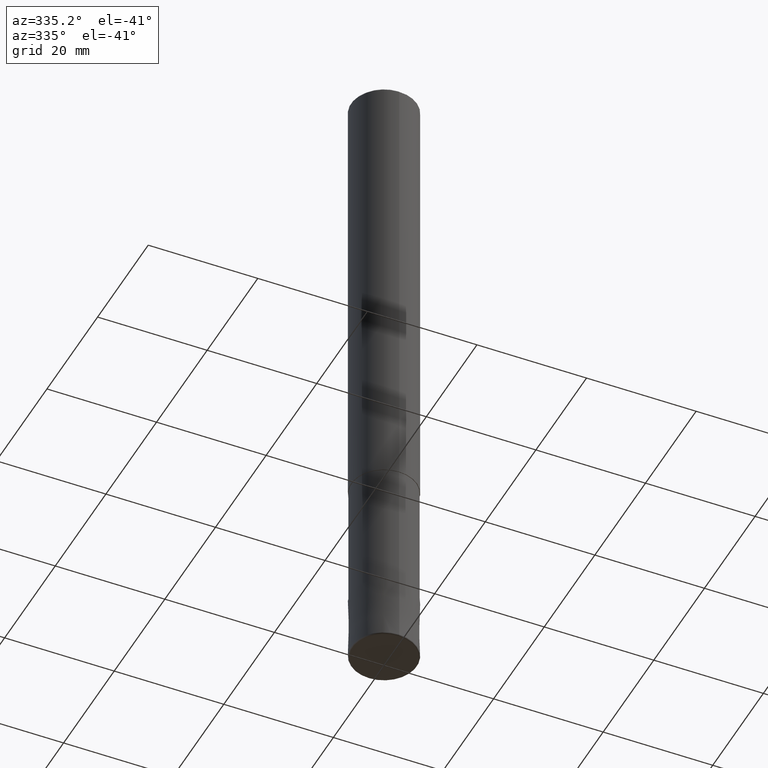
[diagram: clean part render]
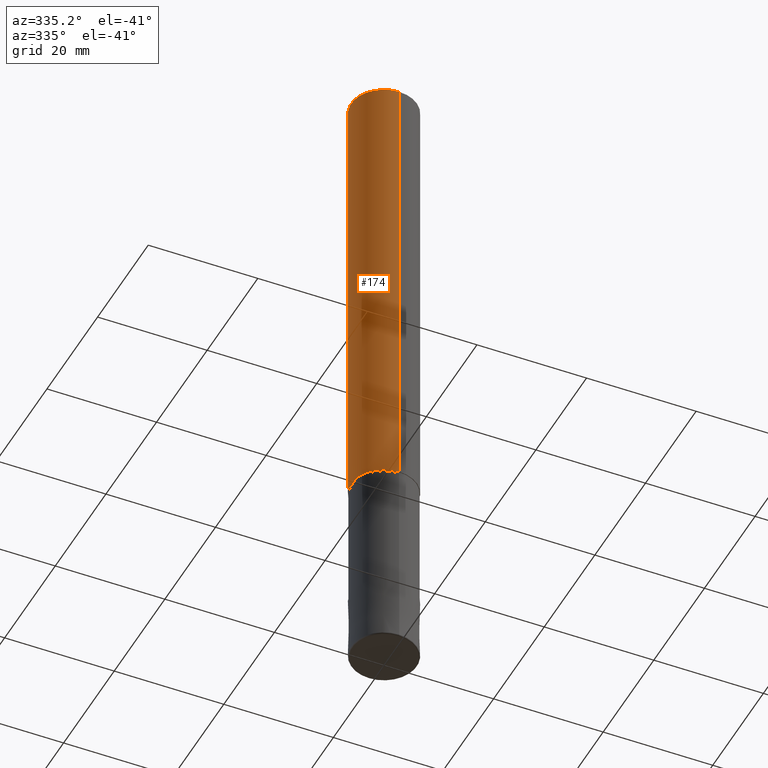
[diagram: same view with one face highlighted and labeled with its STEP entity id]
A machine part, auxiliary view. The second image highlights one B-rep face of the part: STEP entity #174.
In plain terms, the highlighted cylindrical surface (edge-blend (fillet) strip) has radius 6 mm, axis along (-0, -0, 1).
Its self-contained STEP definition (entity closure, byte-faithful):
#100=EDGE_CURVE('',#200,#182,#237,.T.);
#102=EDGE_CURVE('',#188,#200,#239,.T.);
#162=VERTEX_POINT('',#309);
#174=ADVANCED_FACE('',(#323),#324,.T.);
#182=VERTEX_POINT('',#332);
#184=EDGE_CURVE('',#182,#162,#334,.T.);
#188=VERTEX_POINT('',#338);
#194=EDGE_CURVE('',#188,#162,#345,.T.);
#200=VERTEX_POINT('',#351);
#237=CIRCLE('',#388,6.0);
#239=LINE('',#391,#392);
#309=CARTESIAN_POINT('',(0.0,6.0,-84.0));
#323=FACE_OUTER_BOUND('',#488,.T.);
#324=CYLINDRICAL_SURFACE('',#489,6.0);
#332=CARTESIAN_POINT('',(0.0,6.0,-0.599999999999994));
#334=LINE('',#502,#503);
#338=CARTESIAN_POINT('',(7.34763812293426E-016,-6.0,-84.0));
#345=CIRCLE('',#518,6.0);
#351=CARTESIAN_POINT('',(7.34763812293426E-016,-6.0,-0.599999999999994));
#388=AXIS2_PLACEMENT_3D('',#545,#546,#547);
#391=CARTESIAN_POINT('',(7.34763812293426E-016,-6.0,-42.3));
#392=VECTOR('',#548,1.0);
#488=EDGE_LOOP('',(#666,#667,#668,#669));
#489=AXIS2_PLACEMENT_3D('',#670,#671,#672);
#502=CARTESIAN_POINT('',(-7.34763812293426E-016,6.0,-42.3));
#503=VECTOR('',#679,1.0);
#518=AXIS2_PLACEMENT_3D('',#692,#693,#694);
#545=CARTESIAN_POINT('',(0.0,0.0,-0.599999999999994));
#546=DIRECTION('',(0.0,0.0,-1.0));
#547=DIRECTION('',(0.0,1.0,0.0));
#548=DIRECTION('',(-0.0,-0.0,1.0));
#666=ORIENTED_EDGE('',*,*,#184,.T.);
#667=ORIENTED_EDGE('',*,*,#194,.F.);
#668=ORIENTED_EDGE('',*,*,#102,.T.);
#669=ORIENTED_EDGE('',*,*,#100,.T.);
#670=CARTESIAN_POINT('',(0.0,0.0,-42.3));
#671=DIRECTION('',(-0.0,-0.0,1.0));
#672=DIRECTION('',(0.0,1.0,0.0));
#679=DIRECTION('',(0.0,0.0,-1.0));
#692=CARTESIAN_POINT('',(0.0,0.0,-84.0));
#693=DIRECTION('',(0.0,0.0,-1.0));
#694=DIRECTION('',(0.0,1.0,0.0));